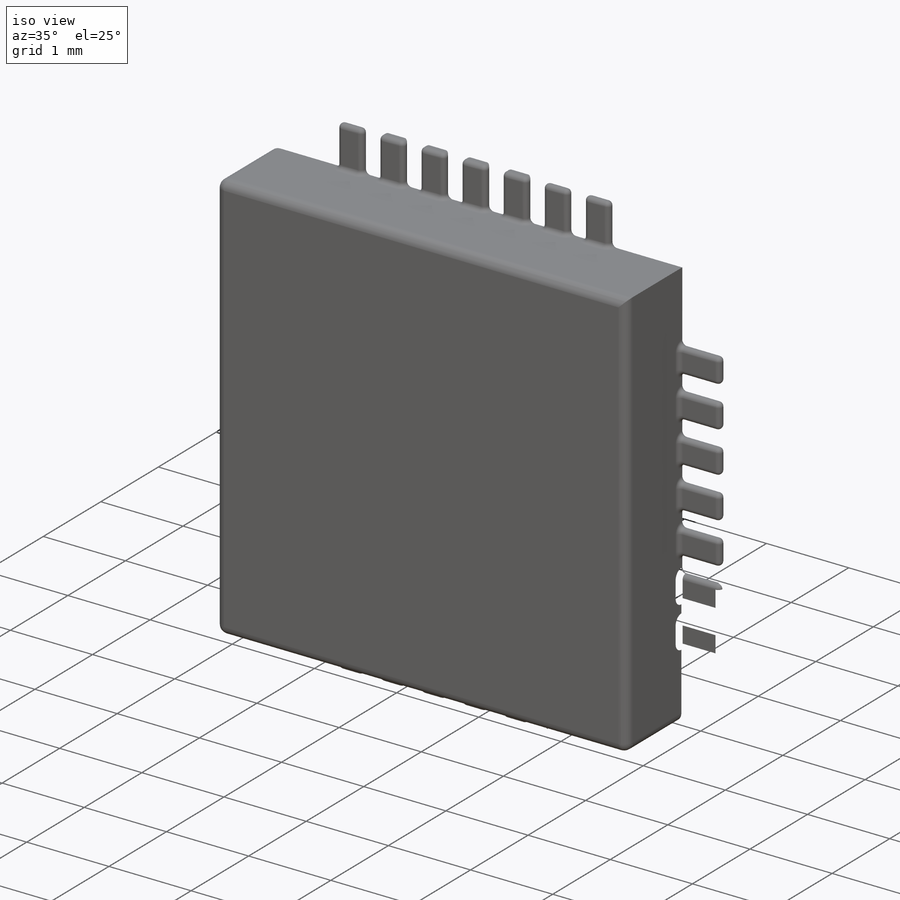
[diagram: iso view]
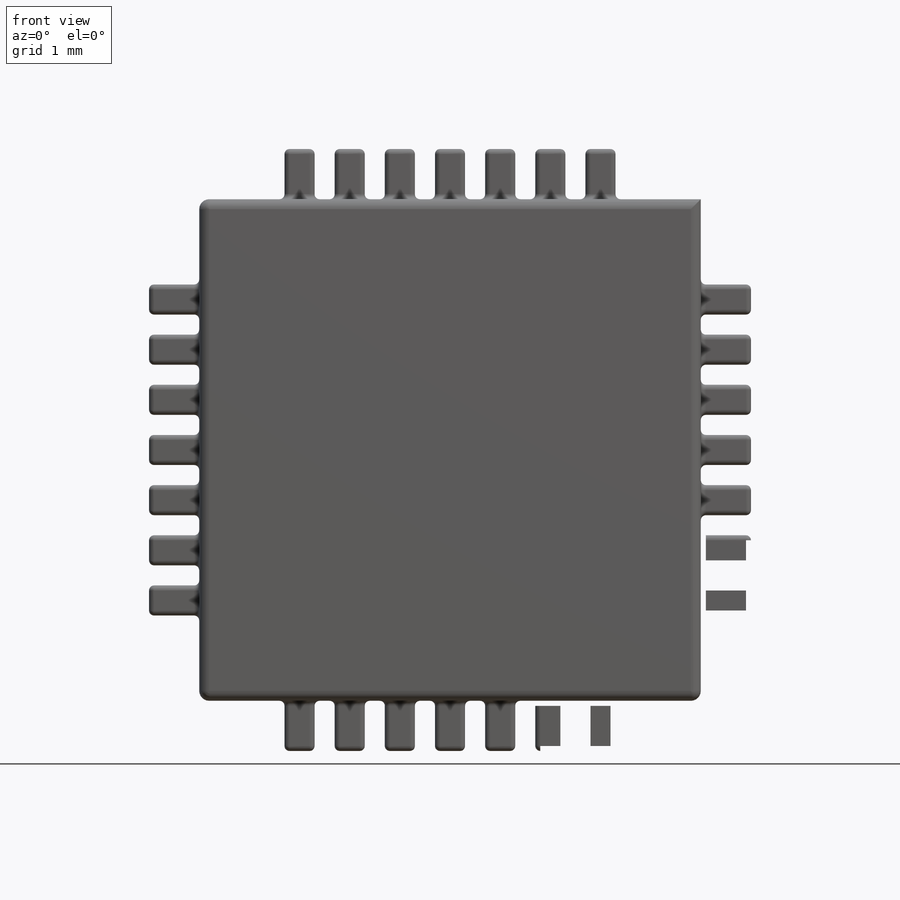
[diagram: front view]
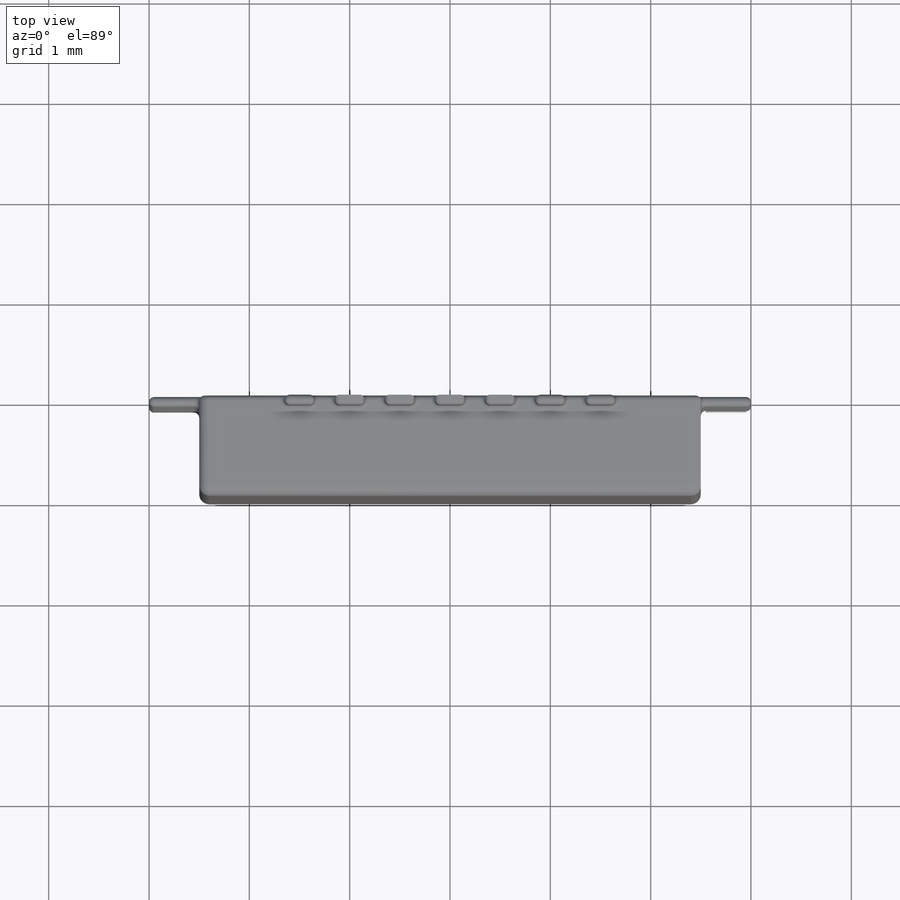
[diagram: top view]
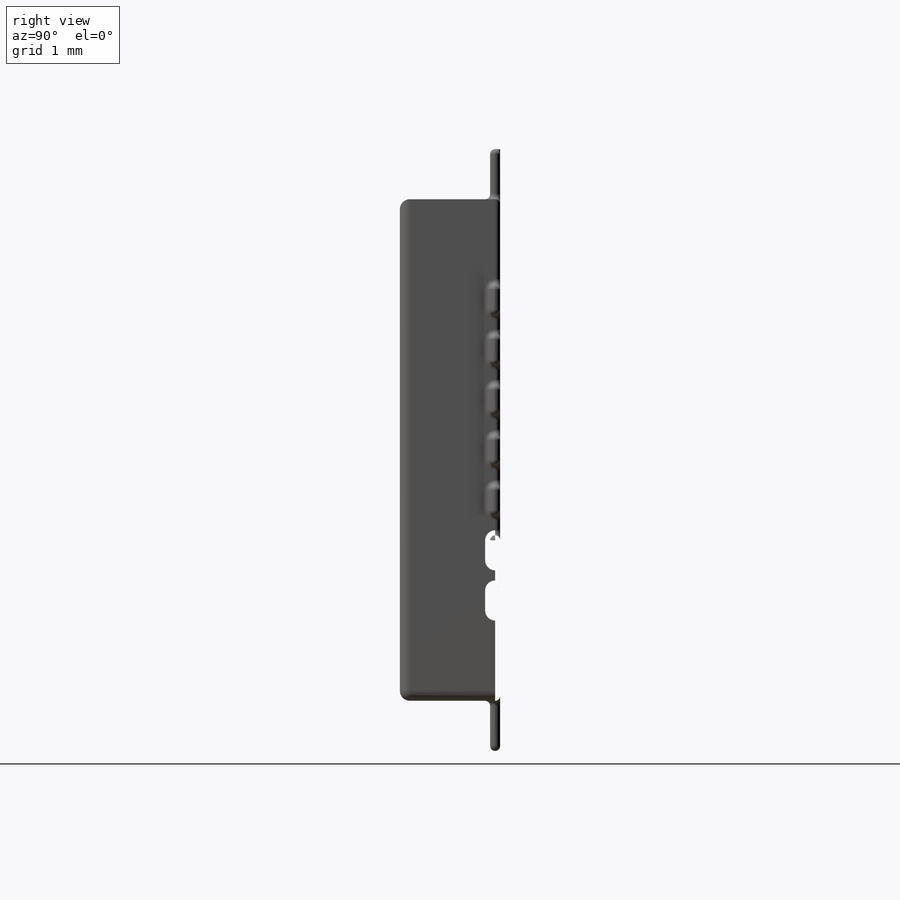
[diagram: right view]
SOLIDWORKS PART (.sldprt)
format: sldprt  version: not decoded by parser v0  size: 1,034,752 bytes
history: native  units: mm
features: plane x3, sketch x2, extrude x2, fillet x2, material x1 (+10 scaffold rows collapsed)
feature tree (20):
  scaffold x10  (default folders/planes/origin — collapsed)
  material  "Materiale <non specificato>"
  plane  "Piano frontale"
  plane  "Piano superiore"
  plane  "Piano destro"
  sketch  "Schizzo1"  dims[D1=5.0mm D2=5.0mm]
  extrude  "Estrusione-Estrusione1"  Depth=1mm
  sketch  "Schizzo2"  dims[c1.D1=0.3mm c1.D2=0.2mm c1.D3=0.2mm c1.D4=0.2mm c1.D5=0.2mm c1.D6=0.2mm c1.D7=0.2mm c1.D8=0.85mm c1.D9=~0.936912mm c1.D10=~0.936912mm c2.D9=0.5mm c2.D10=1.0mm c2.D11=1.0mm c3.D11=45.0deg]
  extrude  "Estrusione-Estrusione2"  Depth=0.1mm
  fillet  "Raccordo1"  Radius=0.1mm
  fillet  "Raccordo2"  Radius=0.05mm
decode coverage: 6 of 6 modeling features carry decoded parameters
note: ~ marks probable driven/reference dimensions
note: suppression state not decoded; provenance and decode notes live in map.json
